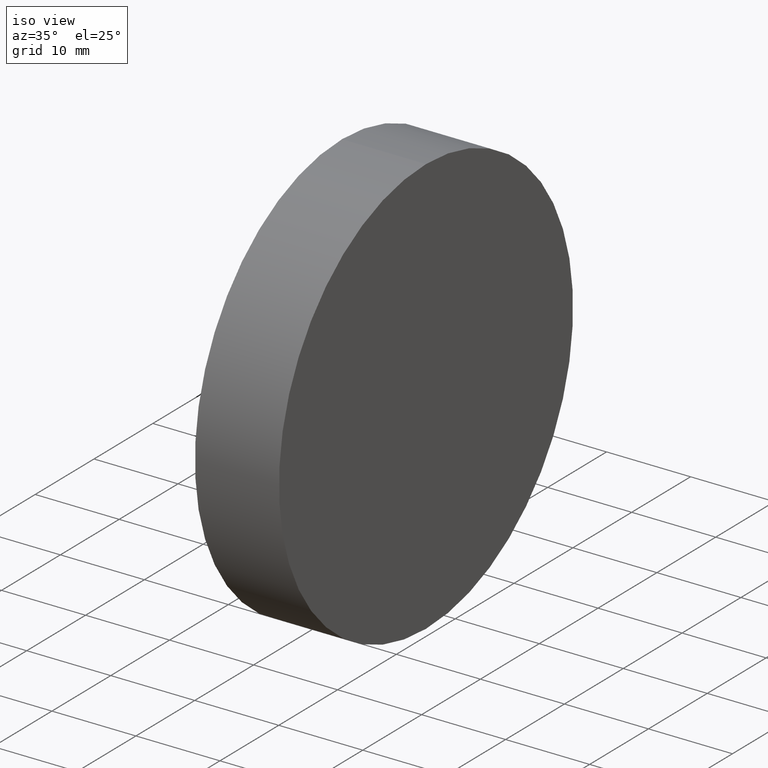
[diagram: clean part render]
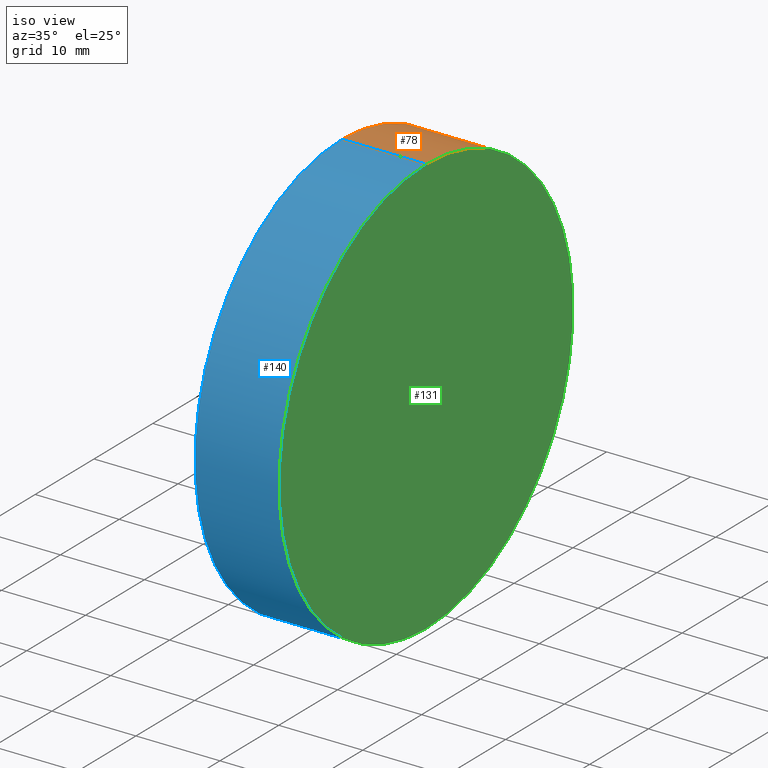
[diagram: same view with three faces highlighted in distinct colors, each labeled with its STEP entity id]
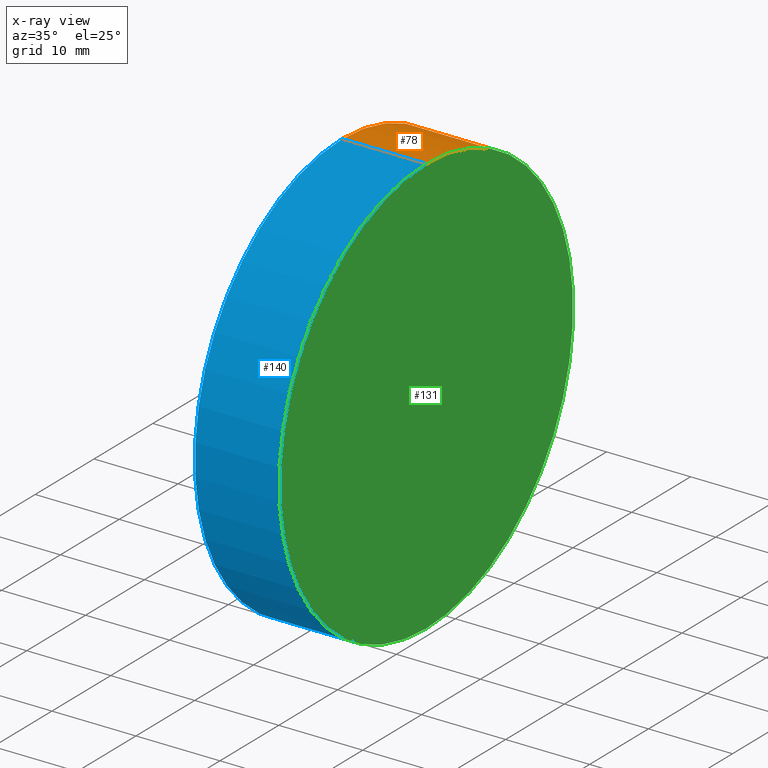
[diagram: x-ray of the same camera — body ghosted, the three highlighted faces saturated]
A machine part, iso view with three faces highlighted in distinct colors.
The next image is the same camera in x-ray (body ghosted, the three faces saturated) — at least one of them is partly hidden behind the body in this view.
Their STEP definitions:

[orange] entity #78 — the highlighted cylindrical surface (partial cylindrical patch) has radius 25 mm, axis along (-1, -0, -0).
#4 = FACE_OUTER_BOUND ( 'NONE', #31, .T. ) ;
#12 = CARTESIAN_POINT ( 'NONE',  ( 508.0016039852320700, 154.5863586980308400, 0.0000000000000000000 ) ) ;
#13 = DIRECTION ( 'NONE',  ( -1.000000000000000000, -0.0000000000000000000, -0.0000000000000000000 ) ) ;
#21 = AXIS2_PLACEMENT_3D ( 'NONE', #12, #49, #85 ) ;
#28 = DIRECTION ( 'NONE',  ( 0.0000000000000000000, 0.0000000000000000000, 1.000000000000000000 ) ) ;
#31 = EDGE_LOOP ( 'NONE', ( #87, #90, #53, #55 ) ) ;
#32 = CIRCLE ( 'NONE', #60, 24.99999999999996800 ) ;
#43 = VERTEX_POINT ( 'NONE', #66 ) ;
#46 = EDGE_CURVE ( 'NONE', #88, #106, #134, .T. ) ;
#49 = DIRECTION ( 'NONE',  ( -1.000000000000000000, -0.0000000000000000000, -0.0000000000000000000 ) ) ;
#50 = CYLINDRICAL_SURFACE ( 'NONE', #21, 24.99999999999996800 ) ;
#51 = EDGE_CURVE ( 'NONE', #88, #128, #61, .T. ) ;
#52 = DIRECTION ( 'NONE',  ( -1.000000000000000000, -0.0000000000000000000, -0.0000000000000000000 ) ) ;
#53 = ORIENTED_EDGE ( 'NONE', *, *, #58, .F. ) ;
#55 = ORIENTED_EDGE ( 'NONE', *, *, #46, .F. ) ;
#56 = LINE ( 'NONE', #67, #109 ) ;
#58 = EDGE_CURVE ( 'NONE', #106, #43, #32, .T. ) ;
#59 = DIRECTION ( 'NONE',  ( -1.000000000000000000, -0.0000000000000000000, -0.0000000000000000000 ) ) ;
#60 = AXIS2_PLACEMENT_3D ( 'NONE', #103, #59, #28 ) ;
#61 = CIRCLE ( 'NONE', #132, 24.99999999999996800 ) ;
#66 = CARTESIAN_POINT ( 'NONE',  ( 520.3142809851219700, 154.5863586980308400, -24.99999999999996800 ) ) ;
#67 = CARTESIAN_POINT ( 'NONE',  ( 508.0016039852320700, 154.5863586980308400, -24.99999999999996800 ) ) ;
#70 = EDGE_CURVE ( 'NONE', #128, #43, #56, .T. ) ;
#78 = ADVANCED_FACE ( 'NONE', ( #4 ), #50, .T. ) ;
#85 = DIRECTION ( 'NONE',  ( 0.0000000000000000000, 0.0000000000000000000, 1.000000000000000000 ) ) ;
#87 = ORIENTED_EDGE ( 'NONE', *, *, #51, .T. ) ;
#88 = VERTEX_POINT ( 'NONE', #125 ) ;
#90 = ORIENTED_EDGE ( 'NONE', *, *, #70, .T. ) ;
#94 = VECTOR ( 'NONE', #52, 1000.000000000000000 ) ;
#102 = CARTESIAN_POINT ( 'NONE',  ( 520.3142809851219700, 154.5863586980308400, 24.99999999999996800 ) ) ;
#103 = CARTESIAN_POINT ( 'NONE',  ( 520.3142809851219700, 154.5863586980308400, 0.0000000000000000000 ) ) ;
#106 = VERTEX_POINT ( 'NONE', #102 ) ;
#109 = VECTOR ( 'NONE', #116, 1000.000000000000000 ) ;
#116 = DIRECTION ( 'NONE',  ( -1.000000000000000000, -0.0000000000000000000, -0.0000000000000000000 ) ) ;
#119 = CARTESIAN_POINT ( 'NONE',  ( 530.3142809851219700, 154.5863586980308400, 0.0000000000000000000 ) ) ;
#125 = CARTESIAN_POINT ( 'NONE',  ( 530.3142809851219700, 154.5863586980308400, 24.99999999999996800 ) ) ;
#128 = VERTEX_POINT ( 'NONE', #138 ) ;
#132 = AXIS2_PLACEMENT_3D ( 'NONE', #119, #13, #137 ) ;
#134 = LINE ( 'NONE', #135, #94 ) ;
#135 = CARTESIAN_POINT ( 'NONE',  ( 508.0016039852320700, 154.5863586980308400, 24.99999999999996800 ) ) ;
#137 = DIRECTION ( 'NONE',  ( 0.0000000000000000000, 0.0000000000000000000, 1.000000000000000000 ) ) ;
#138 = CARTESIAN_POINT ( 'NONE',  ( 530.3142809851219700, 154.5863586980308400, -24.99999999999996800 ) ) ;

[blue] entity #140 — the highlighted cylindrical surface (partial cylindrical patch) has radius 25 mm, axis along (-1, -0, -0).
#2 = ORIENTED_EDGE ( 'NONE', *, *, #122, .F. ) ;
#5 = DIRECTION ( 'NONE',  ( -1.000000000000000000, -0.0000000000000000000, -0.0000000000000000000 ) ) ;
#6 = AXIS2_PLACEMENT_3D ( 'NONE', #86, #25, #34 ) ;
#20 = ORIENTED_EDGE ( 'NONE', *, *, #70, .F. ) ;
#25 = DIRECTION ( 'NONE',  ( -1.000000000000000000, -0.0000000000000000000, -0.0000000000000000000 ) ) ;
#30 = CIRCLE ( 'NONE', #84, 24.99999999999996800 ) ;
#34 = DIRECTION ( 'NONE',  ( 0.0000000000000000000, 0.0000000000000000000, 1.000000000000000000 ) ) ;
#35 = EDGE_CURVE ( 'NONE', #128, #88, #30, .T. ) ;
#38 = ORIENTED_EDGE ( 'NONE', *, *, #46, .T. ) ;
#39 = CARTESIAN_POINT ( 'NONE',  ( 530.3142809851219700, 154.5863586980308400, 0.0000000000000000000 ) ) ;
#43 = VERTEX_POINT ( 'NONE', #66 ) ;
#46 = EDGE_CURVE ( 'NONE', #88, #106, #134, .T. ) ;
#52 = DIRECTION ( 'NONE',  ( -1.000000000000000000, -0.0000000000000000000, -0.0000000000000000000 ) ) ;
#56 = LINE ( 'NONE', #67, #109 ) ;
#57 = CARTESIAN_POINT ( 'NONE',  ( 508.0016039852320700, 154.5863586980308400, 0.0000000000000000000 ) ) ;
#62 = EDGE_LOOP ( 'NONE', ( #20, #118, #38, #2 ) ) ;
#66 = CARTESIAN_POINT ( 'NONE',  ( 520.3142809851219700, 154.5863586980308400, -24.99999999999996800 ) ) ;
#67 = CARTESIAN_POINT ( 'NONE',  ( 508.0016039852320700, 154.5863586980308400, -24.99999999999996800 ) ) ;
#69 = DIRECTION ( 'NONE',  ( -1.000000000000000000, -0.0000000000000000000, -0.0000000000000000000 ) ) ;
#70 = EDGE_CURVE ( 'NONE', #128, #43, #56, .T. ) ;
#73 = CYLINDRICAL_SURFACE ( 'NONE', #101, 24.99999999999996800 ) ;
#79 = FACE_OUTER_BOUND ( 'NONE', #62, .T. ) ;
#84 = AXIS2_PLACEMENT_3D ( 'NONE', #39, #5, #104 ) ;
#86 = CARTESIAN_POINT ( 'NONE',  ( 520.3142809851219700, 154.5863586980308400, 0.0000000000000000000 ) ) ;
#88 = VERTEX_POINT ( 'NONE', #125 ) ;
#94 = VECTOR ( 'NONE', #52, 1000.000000000000000 ) ;
#101 = AXIS2_PLACEMENT_3D ( 'NONE', #57, #69, #115 ) ;
#102 = CARTESIAN_POINT ( 'NONE',  ( 520.3142809851219700, 154.5863586980308400, 24.99999999999996800 ) ) ;
#104 = DIRECTION ( 'NONE',  ( 0.0000000000000000000, 0.0000000000000000000, 1.000000000000000000 ) ) ;
#106 = VERTEX_POINT ( 'NONE', #102 ) ;
#109 = VECTOR ( 'NONE', #116, 1000.000000000000000 ) ;
#114 = CIRCLE ( 'NONE', #6, 24.99999999999996800 ) ;
#115 = DIRECTION ( 'NONE',  ( 0.0000000000000000000, 0.0000000000000000000, 1.000000000000000000 ) ) ;
#116 = DIRECTION ( 'NONE',  ( -1.000000000000000000, -0.0000000000000000000, -0.0000000000000000000 ) ) ;
#118 = ORIENTED_EDGE ( 'NONE', *, *, #35, .T. ) ;
#122 = EDGE_CURVE ( 'NONE', #43, #106, #114, .T. ) ;
#125 = CARTESIAN_POINT ( 'NONE',  ( 530.3142809851219700, 154.5863586980308400, 24.99999999999996800 ) ) ;
#128 = VERTEX_POINT ( 'NONE', #138 ) ;
#134 = LINE ( 'NONE', #135, #94 ) ;
#135 = CARTESIAN_POINT ( 'NONE',  ( 508.0016039852320700, 154.5863586980308400, 24.99999999999996800 ) ) ;
#138 = CARTESIAN_POINT ( 'NONE',  ( 530.3142809851219700, 154.5863586980308400, -24.99999999999996800 ) ) ;
#140 = ADVANCED_FACE ( 'NONE', ( #79 ), #73, .T. ) ;

[green] entity #131 — the highlighted planar face has unit normal (-1, 0, -0).
#5 = DIRECTION ( 'NONE',  ( -1.000000000000000000, -0.0000000000000000000, -0.0000000000000000000 ) ) ;
#7 = ORIENTED_EDGE ( 'NONE', *, *, #51, .F. ) ;
#9 = FACE_OUTER_BOUND ( 'NONE', #121, .T. ) ;
#13 = DIRECTION ( 'NONE',  ( -1.000000000000000000, -0.0000000000000000000, -0.0000000000000000000 ) ) ;
#27 = CARTESIAN_POINT ( 'NONE',  ( 530.3142809851219700, 154.5863586980308100, 0.0000000000000000000 ) ) ;
#30 = CIRCLE ( 'NONE', #84, 24.99999999999996800 ) ;
#35 = EDGE_CURVE ( 'NONE', #128, #88, #30, .T. ) ;
#36 = DIRECTION ( 'NONE',  ( -1.000000000000000000, 0.0000000000000000000, -0.0000000000000000000 ) ) ;
#39 = CARTESIAN_POINT ( 'NONE',  ( 530.3142809851219700, 154.5863586980308400, 0.0000000000000000000 ) ) ;
#51 = EDGE_CURVE ( 'NONE', #88, #128, #61, .T. ) ;
#61 = CIRCLE ( 'NONE', #132, 24.99999999999996800 ) ;
#68 = DIRECTION ( 'NONE',  ( -0.0000000000000000000, 0.0000000000000000000, 1.000000000000000000 ) ) ;
#75 = ORIENTED_EDGE ( 'NONE', *, *, #35, .F. ) ;
#84 = AXIS2_PLACEMENT_3D ( 'NONE', #39, #5, #104 ) ;
#88 = VERTEX_POINT ( 'NONE', #125 ) ;
#95 = PLANE ( 'NONE',  #99 ) ;
#99 = AXIS2_PLACEMENT_3D ( 'NONE', #27, #36, #68 ) ;
#104 = DIRECTION ( 'NONE',  ( 0.0000000000000000000, 0.0000000000000000000, 1.000000000000000000 ) ) ;
#119 = CARTESIAN_POINT ( 'NONE',  ( 530.3142809851219700, 154.5863586980308400, 0.0000000000000000000 ) ) ;
#121 = EDGE_LOOP ( 'NONE', ( #7, #75 ) ) ;
#125 = CARTESIAN_POINT ( 'NONE',  ( 530.3142809851219700, 154.5863586980308400, 24.99999999999996800 ) ) ;
#128 = VERTEX_POINT ( 'NONE', #138 ) ;
#131 = ADVANCED_FACE ( 'NONE', ( #9 ), #95, .F. ) ;
#132 = AXIS2_PLACEMENT_3D ( 'NONE', #119, #13, #137 ) ;
#137 = DIRECTION ( 'NONE',  ( 0.0000000000000000000, 0.0000000000000000000, 1.000000000000000000 ) ) ;
#138 = CARTESIAN_POINT ( 'NONE',  ( 530.3142809851219700, 154.5863586980308400, -24.99999999999996800 ) ) ;